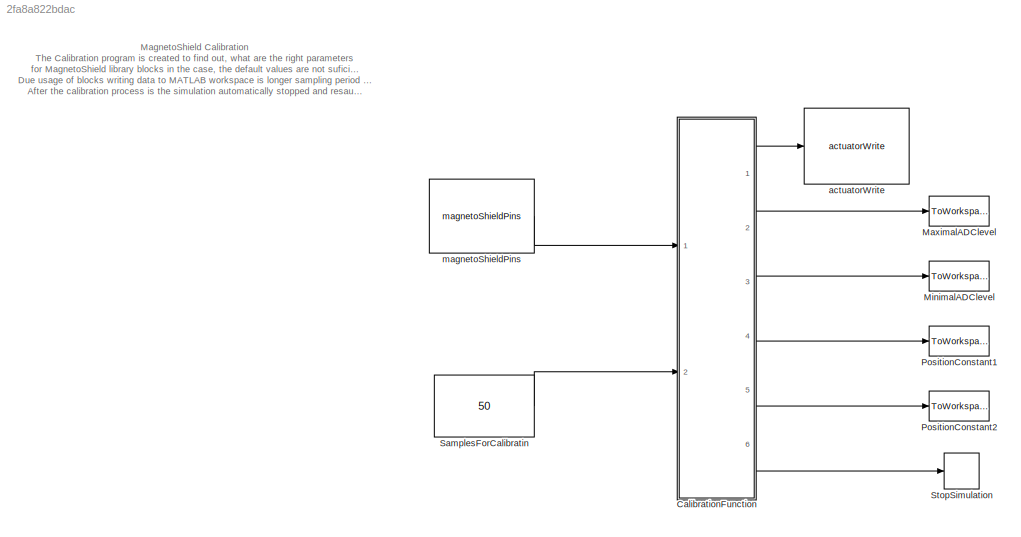
MODEL slx_2fa8a822bdac
KIND model
CONFIG AbsTol = auto
CONFIG EnableMultiTasking = on
CONFIG FixedStep = auto
CONFIG MaxStep = auto
CONFIG MinStep = auto
CONFIG RelTol = 1e-3
CONFIG SampleTimeConstraint = Unconstrained
CONFIG Solver = FixedStepAuto
CONFIG SolverName = FixedStepAuto
CONFIG StartTime = 0.0
CONFIG StopTime = 10
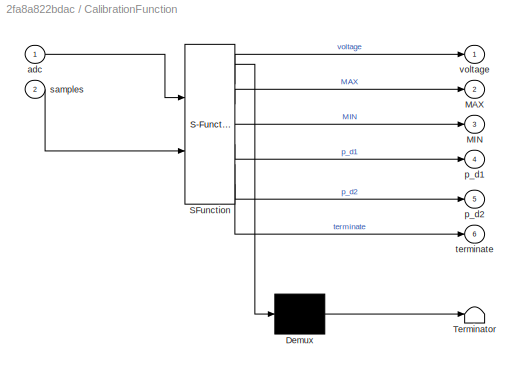
BLOCK [SubSystem] CalibrationFunction
  ErrorFcn = Stateflow.Translate.translate
  PermitHierarchicalResolution = ExplicitOnly
  Ports = [2, 6]
  RequestExecContextInheritance = off
  SFBlockType = MATLAB Function
  TreatAsAtomicUnit = on
BLOCK [Demux] CalibrationFunction/ Demux 
  DisplayOption = bar
  Outputs = 1
  Ports = [1, 1]
BLOCK [S-Function] CalibrationFunction/ SFunction 
  EnableBusSupport = on
  FunctionName = sf_sfun
  PortCounts = [2 7]
  Ports = [2, 7]
  SFcnIsStateOwnerBlock = off
  SFunctionDeploymentMode = off
  Tag = Stateflow S-Function MagnetoShield_Calibration_DUE 2
BLOCK [Terminator] CalibrationFunction/ Terminator 
BLOCK [Outport] CalibrationFunction/MAX
  IconDisplay = Port number
  Port = 2
BLOCK [Outport] CalibrationFunction/MIN
  IconDisplay = Port number
  Port = 3
BLOCK [Inport] CalibrationFunction/adc
  IconDisplay = Port number
BLOCK [Outport] CalibrationFunction/p_d1
  IconDisplay = Port number
  Port = 4
BLOCK [Outport] CalibrationFunction/p_d2
  IconDisplay = Port number
  Port = 5
BLOCK [Inport] CalibrationFunction/samples
  IconDisplay = Port number
  Port = 2
BLOCK [Outport] CalibrationFunction/terminate
  IconDisplay = Port number
  Port = 6
BLOCK [Outport] CalibrationFunction/voltage
  IconDisplay = Port number
BLOCK [ToWorkspace] MaximalADClevel
  FixptAsFi = on
  MaxDataPoints = 1
  Ports = [1]
  SampleTime = -1
  Save2DSignal = 2-D array (concatenate along first dimension)
  VariableName = ADC_maximum
BLOCK [ToWorkspace] MinimalADClevel
  MaxDataPoints = 1
  Ports = [1]
  SampleTime = -1
  Save2DSignal = 2-D array (concatenate along first dimension)
  VariableName = ADC_minimum
BLOCK [ToWorkspace] PositionConstant1
  MaxDataPoints = 1
  Ports = [1]
  SampleTime = -1
  Save2DSignal = 2-D array (concatenate along first dimension)
  VariableName = distance1
BLOCK [ToWorkspace] PositionConstant2
  MaxDataPoints = 1
  Ports = [1]
  SampleTime = -1
  Save2DSignal = 2-D array (concatenate along first dimension)
  VariableName = distance2
BLOCK [Constant] SamplesForCalibratin
  SampleTime = 0.008
  Value = 50
BLOCK [Stop] StopSimulation
BLOCK [Reference] actuatorWrite  REF=MagnetoLibrary/actuatorWrite
  Ports = [1]
  SourceBlock = MagnetoLibrary/actuatorWrite
  SourceProductName = AutomationShield
BLOCK [Reference] magnetoShieldPins  REF=MagnetoLibrary/magnetoShieldPins
  Ports = [0, 1]
  SourceBlock = MagnetoLibrary/magnetoShieldPins
  SourceProductName = AutomationShield
ANNOTATION (root): MagnetoShield Calibration The Calibration program is created to find out, what are the right parameters for MagnetoShield library blocks in the case, the default values are not suficiently accurate. Due usage of blocks writing data to MATLAB workspace is longer sampling period required and the warning message is shown. After the calibration process is the simulation automatically stopped and resau...<+30ch>
LINE CalibrationFunction:1 -> actuatorWrite:1
LINE CalibrationFunction:2 -> MaximalADClevel:1
LINE CalibrationFunction:3 -> MinimalADClevel:1
LINE CalibrationFunction:4 -> PositionConstant1:1
LINE CalibrationFunction:5 -> PositionConstant2:1
LINE CalibrationFunction:6 -> StopSimulation:1
LINE SamplesForCalibratin:1 -> CalibrationFunction:2
LINE magnetoShieldPins:1 -> CalibrationFunction:1
CHART CalibrationFunction states=1 transitions=1
  STATE_LABEL 'eML_blk_kernel()'
  STATE_LABEL 'SCRIPT:\nfunction [voltage,MAX,MIN,p_d1,p_d2,terminate]  = fcn(adc,samples)\npersistent adcMAX adcMIN counter ARES3V3 HALL_SENSITIVITY;\nterminate = 0;\n\nif isempty(counter) % inital values of extremes and the counter\n    counter = 0;\n    adcMAX = 300;\n    adcMIN = 300;\n    ARES3V3 = 3.3/4095;\n    HALL_SENSITIVITY = 769.23;\nend\n\n% Minimal ADC level measured on the hall sensor\nif counter<=samples\n    v...<+883ch>'
